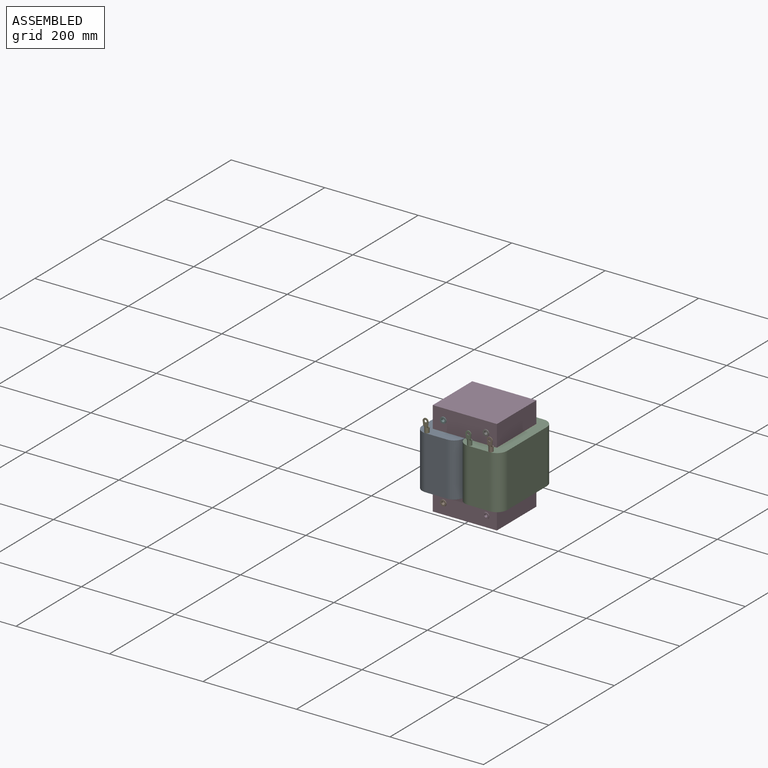
[diagram: assembled view]
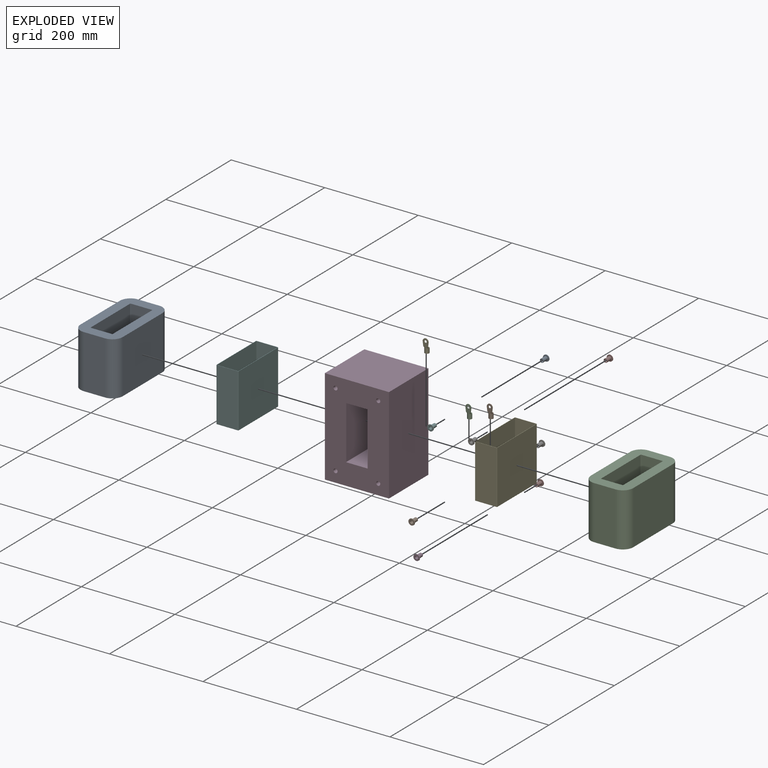
[diagram: exploded view]
GUIDED TOUR — MATED ASSEMBLY (Onshape document 58b9ac5c7fb4300f744a0f36, AutoMate assembly 58b9ac5c7fb4300f744a0f36_75ab90359ca5bb876df0fa08_917da6828774e9305538c0f6_default)

This assembly has 16 components, labeled P0..P15 below (a component is one placed occurrence of a part; the same part can appear more than once), held together by 15 mates. A mate is a constraint between two components; its type names the relative motion it leaves free:
  FASTENED — locks the two components together rigidly (no relative motion),
  PLANAR — leaves sliding in the plane through the listed point (normal = the listed direction) and rotation about that normal free.
Axis/direction vectors are unit vectors and 'through' points are millimeter coordinates, both in the assembly's world frame.

MATES
  1. FASTENED "Fastened 5": P7 <-> P11, direction (0.000, 1.000, 0.000) through (45.72, 120.65, -80.01) mm
  2. FASTENED "Fastened 6": P6 <-> P11, direction (0.000, 1.000, 0.000) through (-45.72, 120.65, -80.01) mm
  3. FASTENED "Fastened 12": P15 <-> P11, direction (0.000, -1.000, 0.000) through (45.72, 120.65, 80.01) mm
  4. PLANAR "Planar 1": P4 <-> P8, direction (0.000, 0.000, -1.000) through (-68.58, -17.83, 57.15) mm
  5. PLANAR "Planar 2": P10 <-> P2, direction (0.000, 0.000, -1.000) through (22.86, -17.83, 57.15) mm
  6. FASTENED "Fastened 8": P1 <-> P11, direction (0.000, 1.000, 0.000) through (-45.72, 0.00, -80.01) mm
  7. FASTENED "Fastened 10": P14 <-> P11, direction (0.000, 1.000, 0.000) through (45.72, 0.00, 80.01) mm
  8. PLANAR "Planar 3": P9 <-> P2, direction (0.000, 0.000, -1.000) through (68.58, -17.83, 57.15) mm
  9. FASTENED "Fastened 4": P2 <-> P12, direction (-1.000, 0.000, 0.000) through (69.34, 60.32, 0.00) mm
  10. FASTENED "Fastened 3": P12 <-> P11, direction (-1.000, 0.000, 0.000) through (68.58, 0.00, 0.00) mm
  11. FASTENED "Fastened 11": P0 <-> P11, direction (0.000, 1.000, 0.000) through (-45.72, 120.65, 80.01) mm
  12. FASTENED "Fastened 2": P8 <-> P5, direction (1.000, 0.000, 0.000) through (-69.34, 60.33, 0.00) mm
  13. FASTENED "Fastened 7": P3 <-> P11, direction (0.000, 1.000, 0.000) through (45.72, 0.00, -80.01) mm
  14. FASTENED "Fastened 9": P13 <-> P11, direction (0.000, -1.000, 0.000) through (-45.72, 0.00, 80.01) mm
  15. FASTENED "Fastened 1": P5 <-> P11, direction (1.000, 0.000, 0.000) through (-68.58, 0.00, 0.00) mm

ASSEMBLY ORDER
  1. P12 — the base component [order verified]
  2. P2 [order verified]
  3. P11 [order verified]
  4. P5 [order verified]
  5. P8 [order verified]
  6. P7 [order verified]
  7. P6 [order verified]
  8. P3 [order verified]
  9. P1 [order verified]
  10. P15 [order verified]
  11. P14 [order verified]
  12. P13 [order verified]
  13. P0 [order verified]
  14. P4 [order verified]
  15. P9 [order verified]
  16. P10 [order verified]
Order-tag legend:
  [order verified] — this step's position reverses a verified removal order: the component was checked to insert without passing through the ones already placed.

Of the 16 components, 8 carry the full construction recipe — the FeatureScript program that regenerates the part's solid from scratch; the rest are supplied as boundary geometry only.
Because this assembly has more than 12 components, the tour below covers the 12 most significant ones individually (every recipe-attached component first, then the largest by part volume), in assembly order; the remaining 4 are summarized together in a grouped section at the end.
Each toured component is shown spotlighted twice — in the assembled view, then in the exploded view, where a leader line traces a displaced component back to its assembled socket (saturated green if recipe-attached, orange if geometry-only; every other component desaturated gray) — followed by its recipe or geometry summary and the mates that hold it.
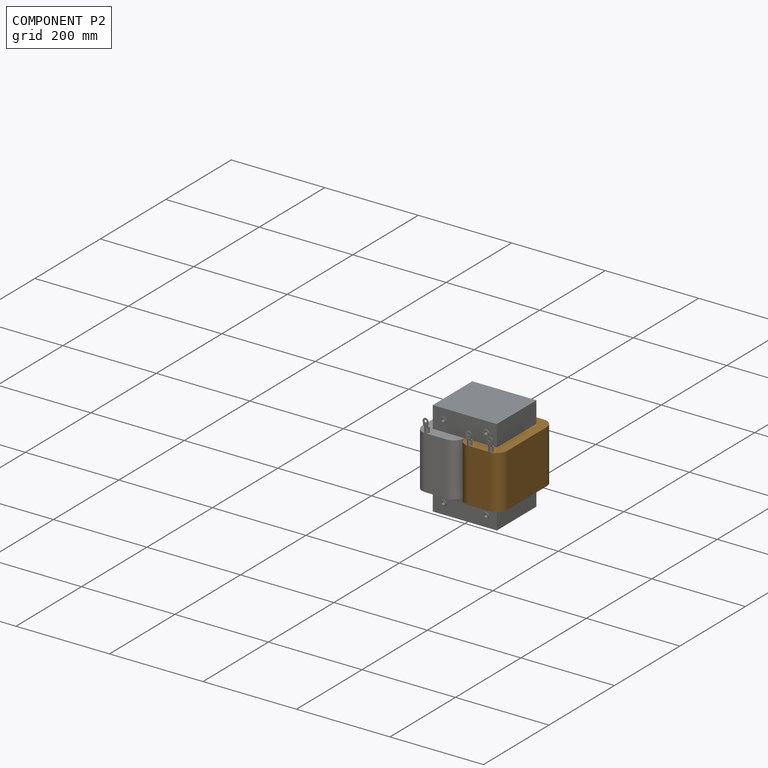
[diagram: component P2 — assembled]
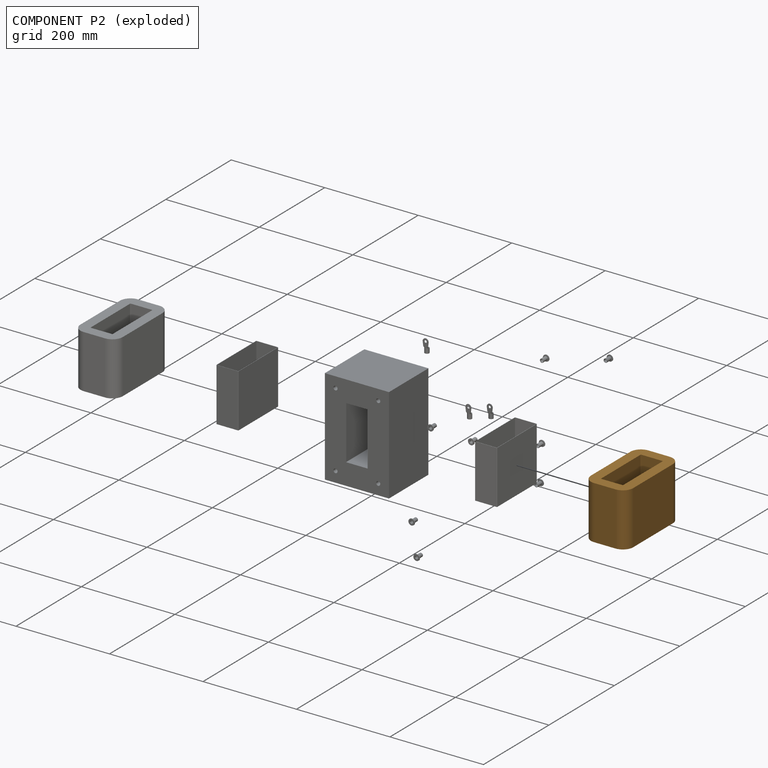
[diagram: component P2 — exploded]
COMPONENT P2 — geometry summary (no construction recipe available for this part):
  bounding box: 165.5 x 114.3 x 90.5 mm
  B-rep topology: 1 solid, 18 faces, 96 edges
  volume: 1003057 mm^3 (59% of its bounding box)
  symmetry: 2-fold rotationally symmetric about the x axis; 2-fold rotationally symmetric about the y axis; 2-fold rotationally symmetric about the z axis; mirror-symmetric across its x mid-plane, y mid-plane, z mid-plane
Held by: PLANAR mate "Planar 2" to P10; PLANAR mate "Planar 3" to P9; FASTENED mate "Fastened 4" to P12.
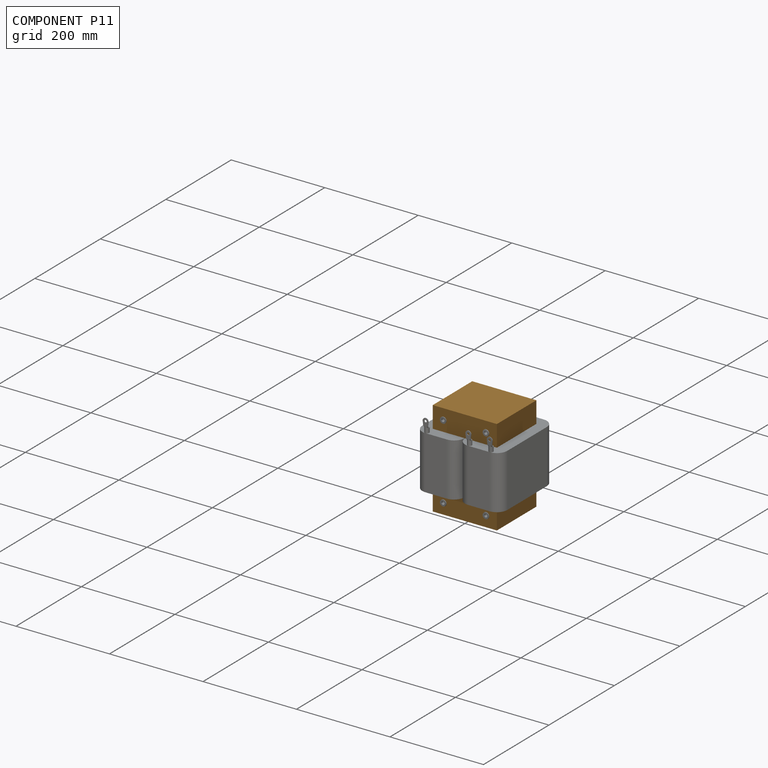
[diagram: component P11 — assembled]
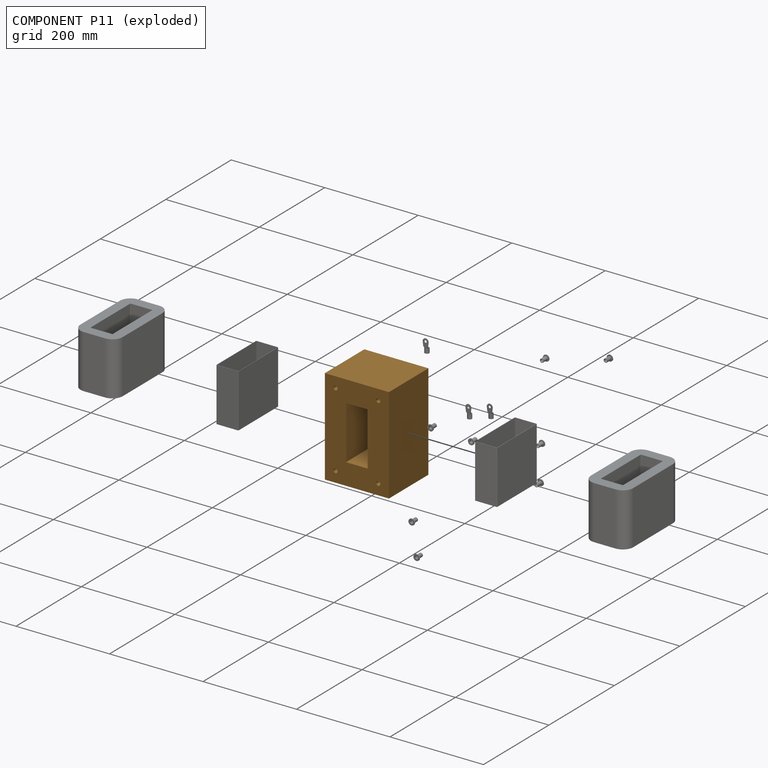
[diagram: component P11 — exploded]
COMPONENT P11 — geometry summary (no construction recipe available for this part):
  bounding box: 205.7 x 137.2 x 120.7 mm
  B-rep topology: 1 solid, 18 faces, 96 edges
  volume: 2745336 mm^3 (81% of its bounding box)
  symmetry: 2-fold rotationally symmetric about the x axis; 2-fold rotationally symmetric about the y axis; 2-fold rotationally symmetric about the z axis; mirror-symmetric across its x mid-plane, y mid-plane, z mid-plane
Held by: FASTENED mate "Fastened 5" to P7; FASTENED mate "Fastened 6" to P6; FASTENED mate "Fastened 12" to P15; FASTENED mate "Fastened 8" to P1; FASTENED mate "Fastened 10" to P14; FASTENED mate "Fastened 3" to P12; FASTENED mate "Fastened 11" to P0; FASTENED mate "Fastened 7" to P3; FASTENED mate "Fastened 9" to P13; FASTENED mate "Fastened 1" to P5.
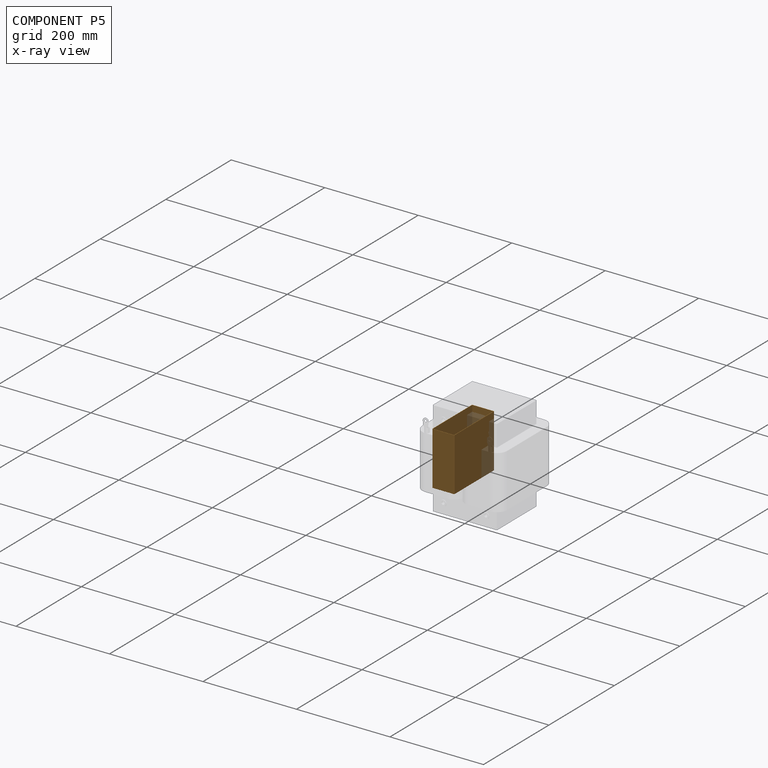
[diagram: component P5 — x-ray view]
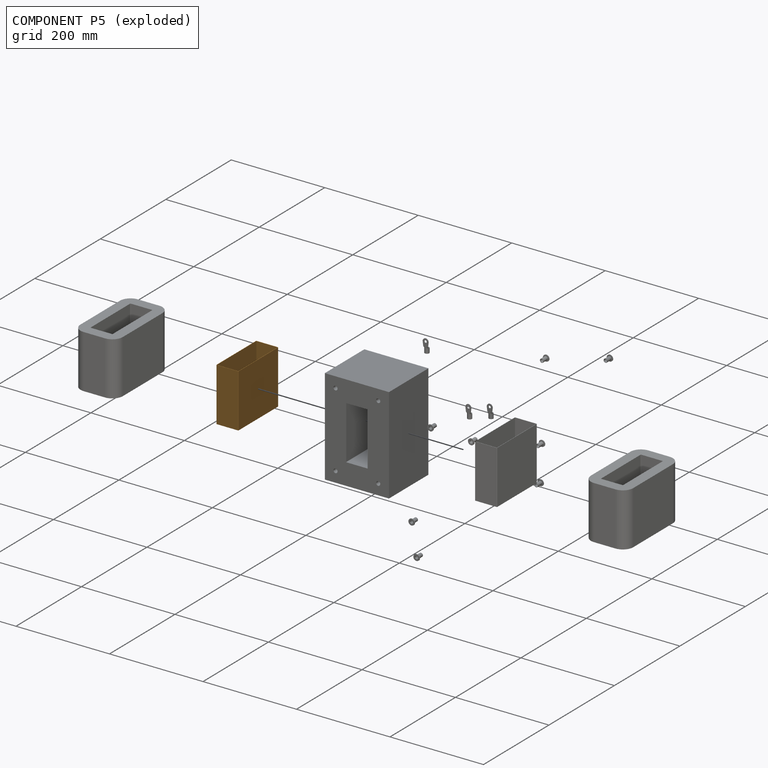
[diagram: component P5 — exploded]
COMPONENT P5 — geometry summary (no construction recipe available for this part):
  bounding box: 122.2 x 114.3 x 47.2 mm
  B-rep topology: 1 solid, 14 faces, 72 edges
  volume: 29189 mm^3 (4% of its bounding box)
  symmetry: 2-fold rotationally symmetric about the x axis; 2-fold rotationally symmetric about the y axis; 2-fold rotationally symmetric about the z axis; mirror-symmetric across its x mid-plane, y mid-plane, z mid-plane
Held by: FASTENED mate "Fastened 2" to P8; FASTENED mate "Fastened 1" to P11.
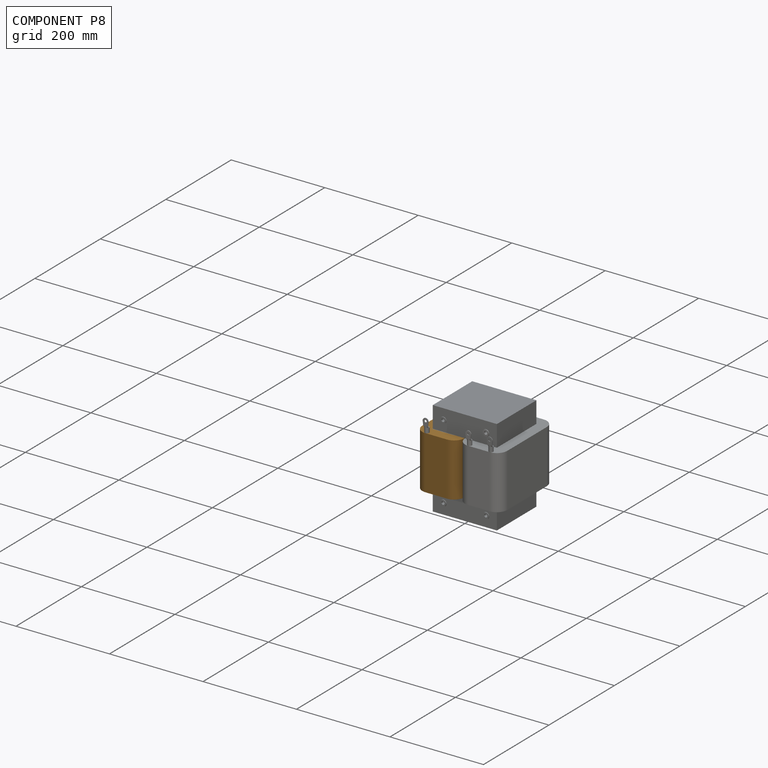
[diagram: component P8 — assembled]
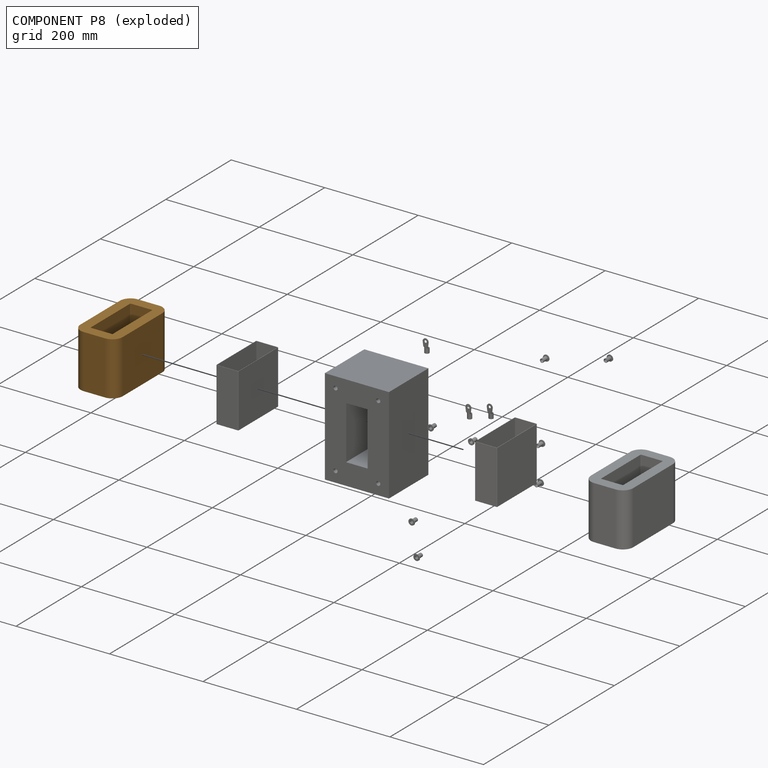
[diagram: component P8 — exploded]
COMPONENT P8 — geometry summary (no construction recipe available for this part):
  bounding box: 165.5 x 114.3 x 90.5 mm
  B-rep topology: 1 solid, 18 faces, 96 edges
  volume: 1003057 mm^3 (59% of its bounding box)
  symmetry: 2-fold rotationally symmetric about the x axis; 2-fold rotationally symmetric about the y axis; 2-fold rotationally symmetric about the z axis; mirror-symmetric across its x mid-plane, y mid-plane, z mid-plane
Held by: PLANAR mate "Planar 1" to P4; FASTENED mate "Fastened 2" to P5.
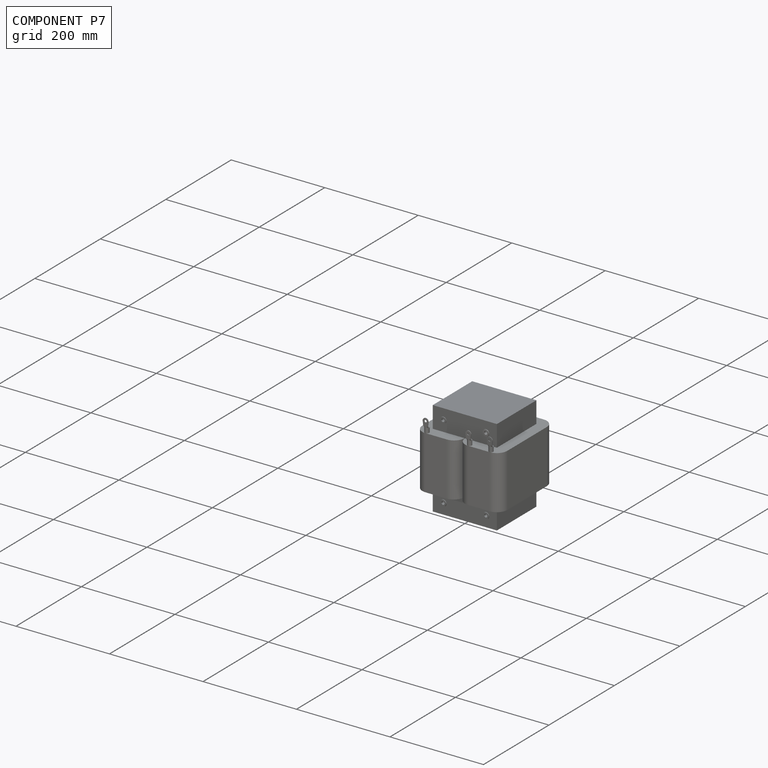
[diagram: component P7 — assembled]
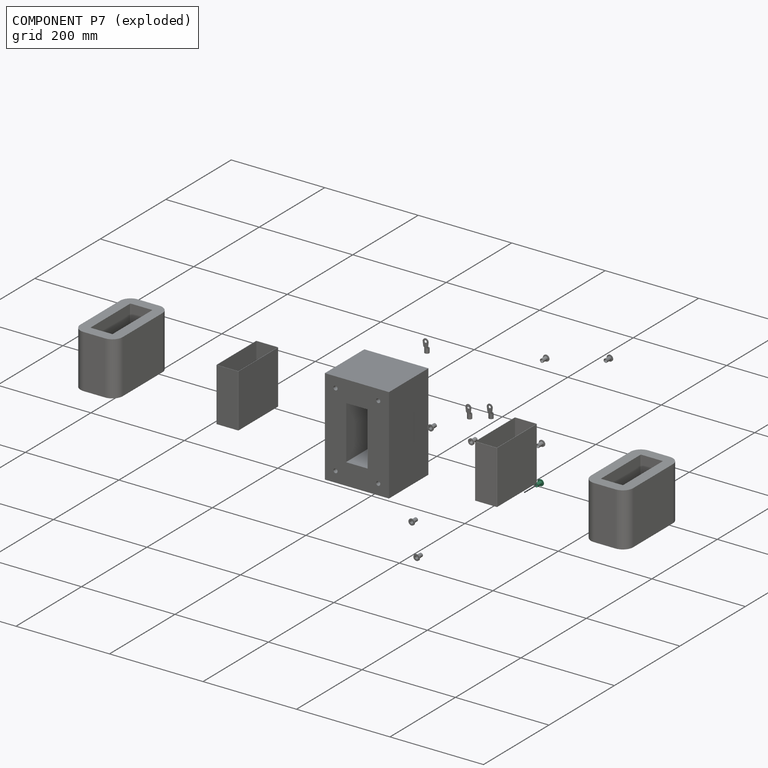
[diagram: component P7 — exploded]
COMPONENT P7 — same part as P0 (CADFS 00583487); its construction recipe is shown at P0.
Held by: FASTENED mate "Fastened 5" to P11.
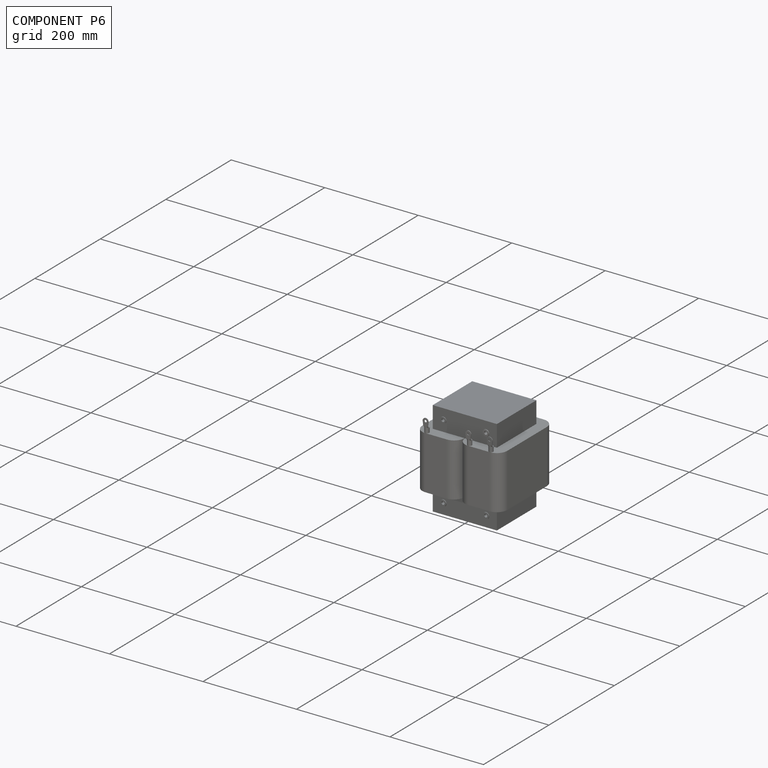
[diagram: component P6 — assembled]
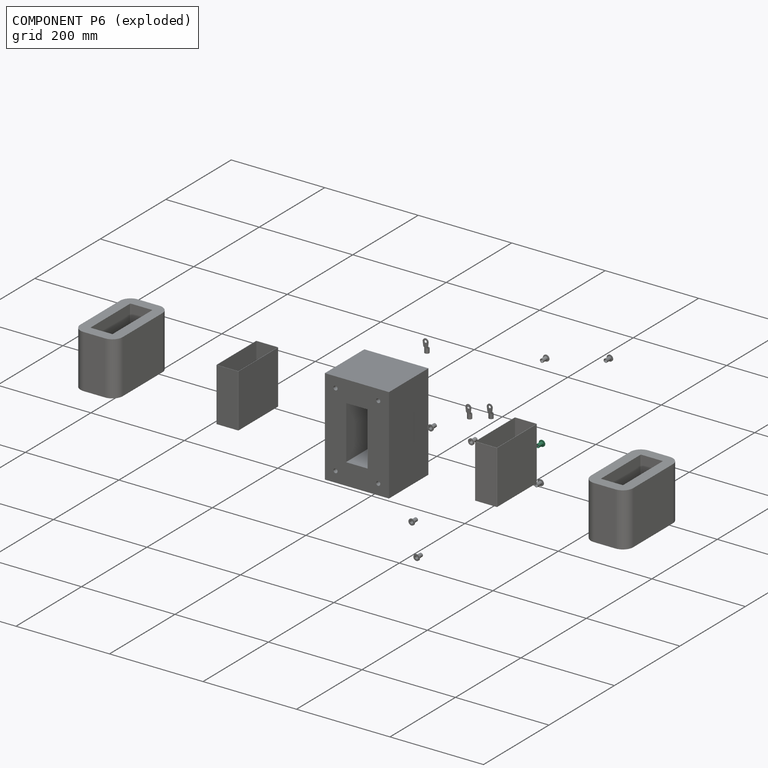
[diagram: component P6 — exploded]
COMPONENT P6 — same part as P0 (CADFS 00583487); its construction recipe is shown at P0.
Held by: FASTENED mate "Fastened 6" to P11.
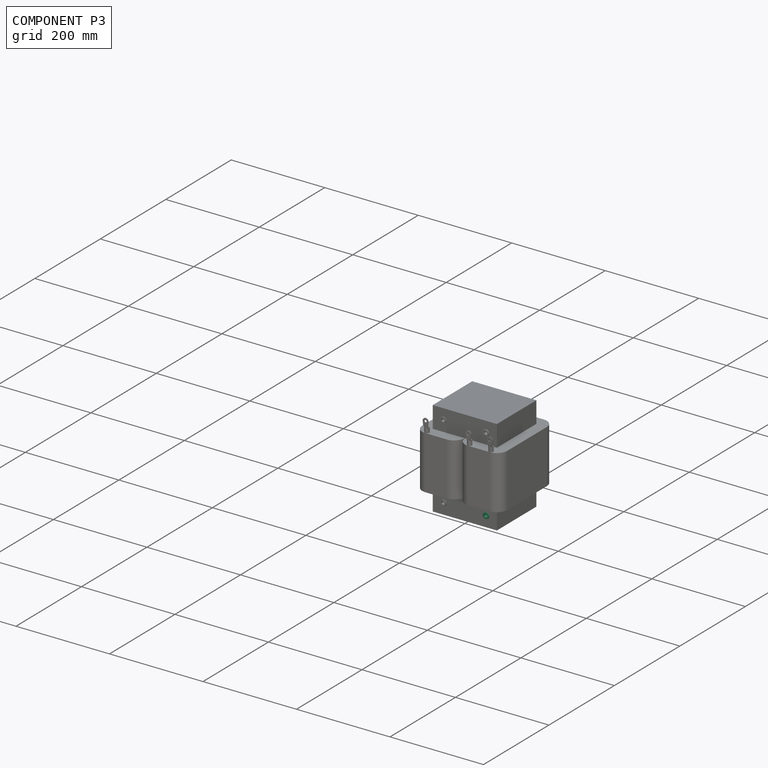
[diagram: component P3 — assembled]
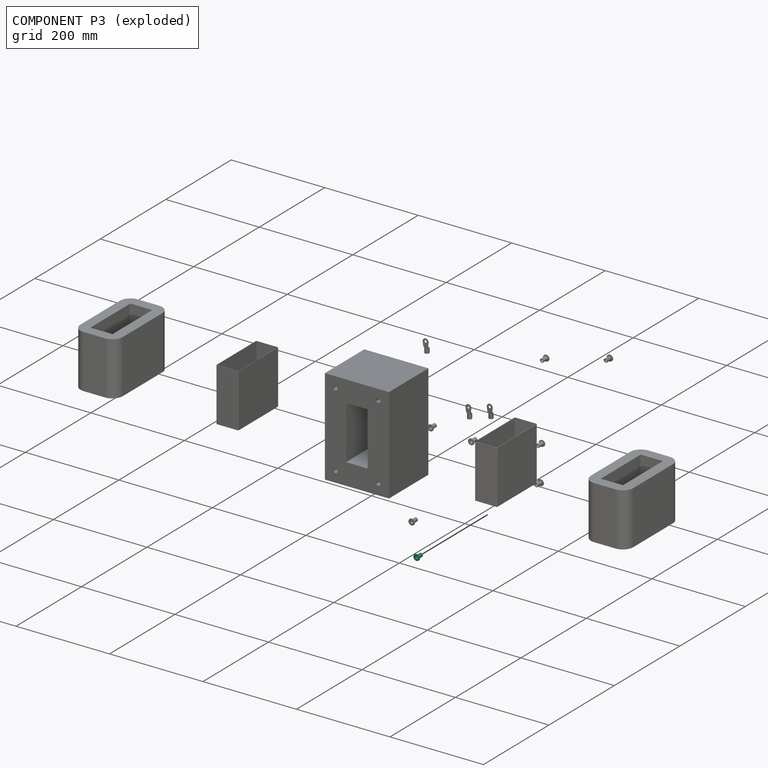
[diagram: component P3 — exploded]
COMPONENT P3 — same part as P0 (CADFS 00583487); its construction recipe is shown at P0.
Held by: FASTENED mate "Fastened 7" to P11.
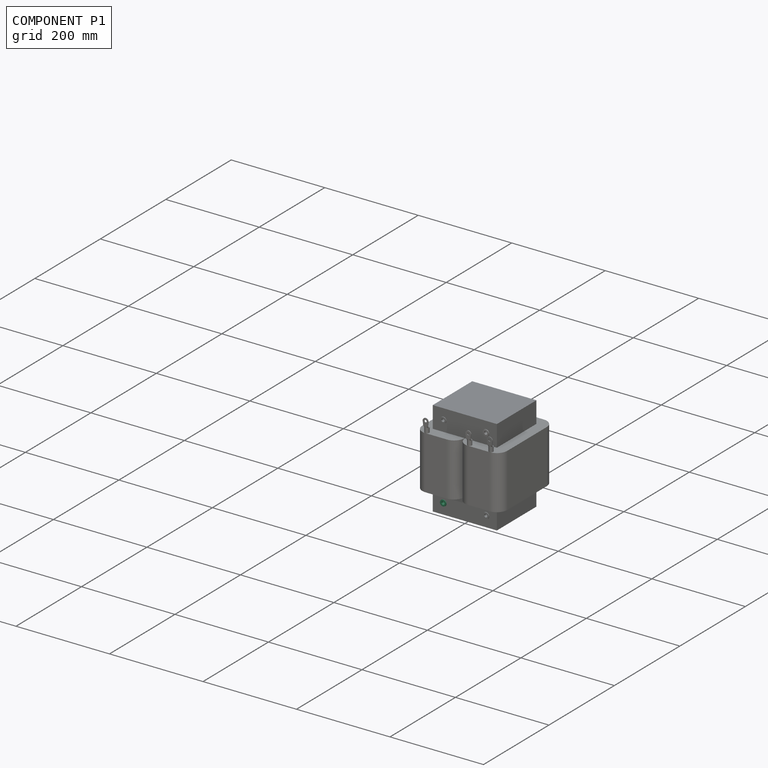
[diagram: component P1 — assembled]
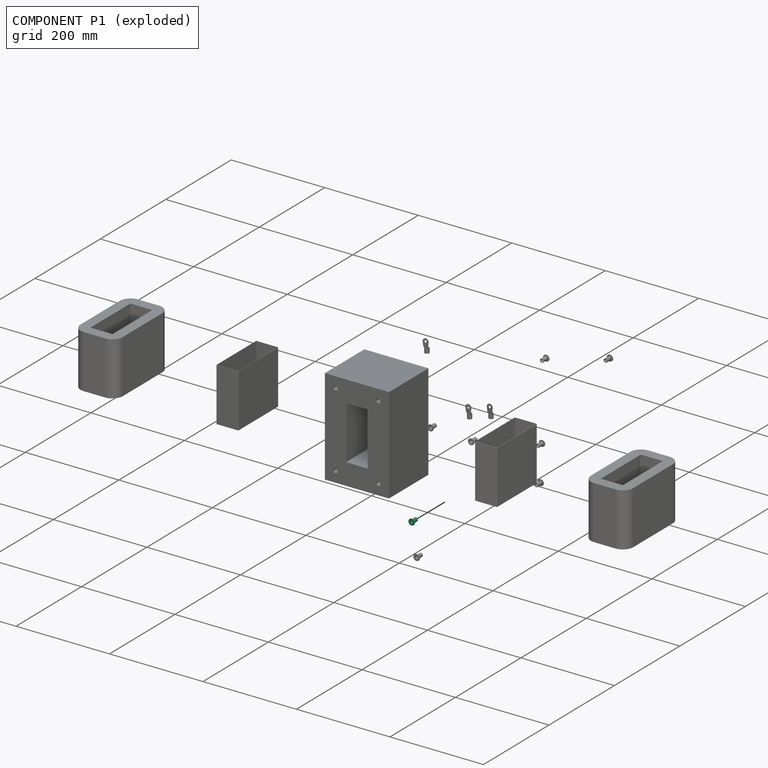
[diagram: component P1 — exploded]
COMPONENT P1 — same part as P0 (CADFS 00583487); its construction recipe is shown at P0.
Held by: FASTENED mate "Fastened 8" to P11.
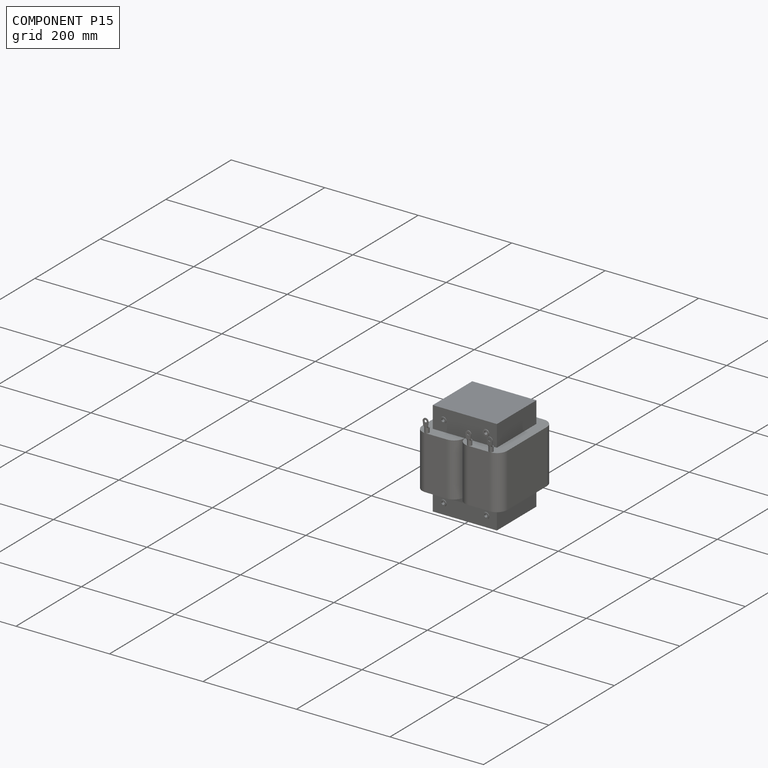
[diagram: component P15 — assembled]
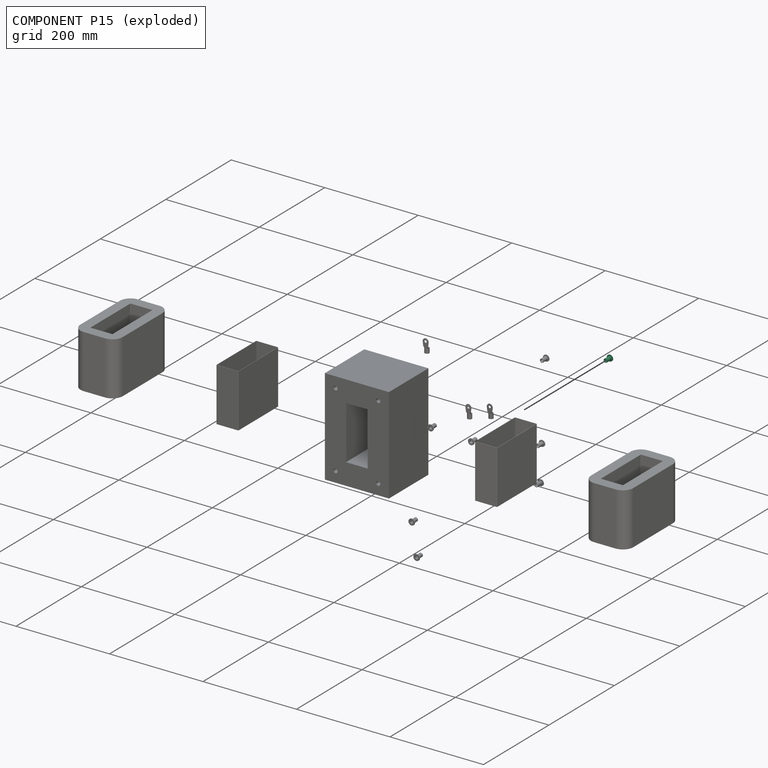
[diagram: component P15 — exploded]
COMPONENT P15 — same part as P0 (CADFS 00583487); its construction recipe is shown at P0.
Held by: FASTENED mate "Fastened 12" to P11.
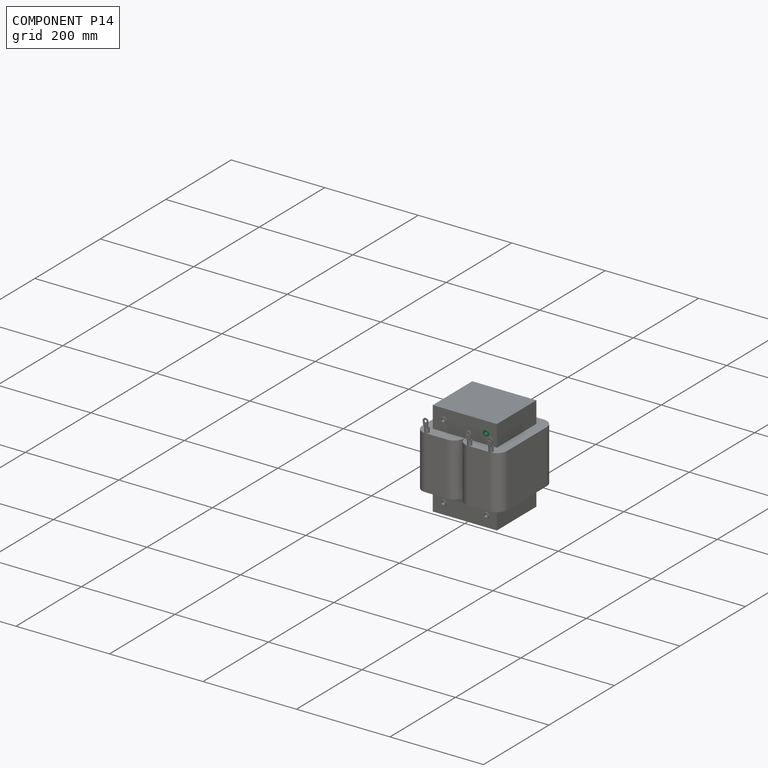
[diagram: component P14 — assembled]
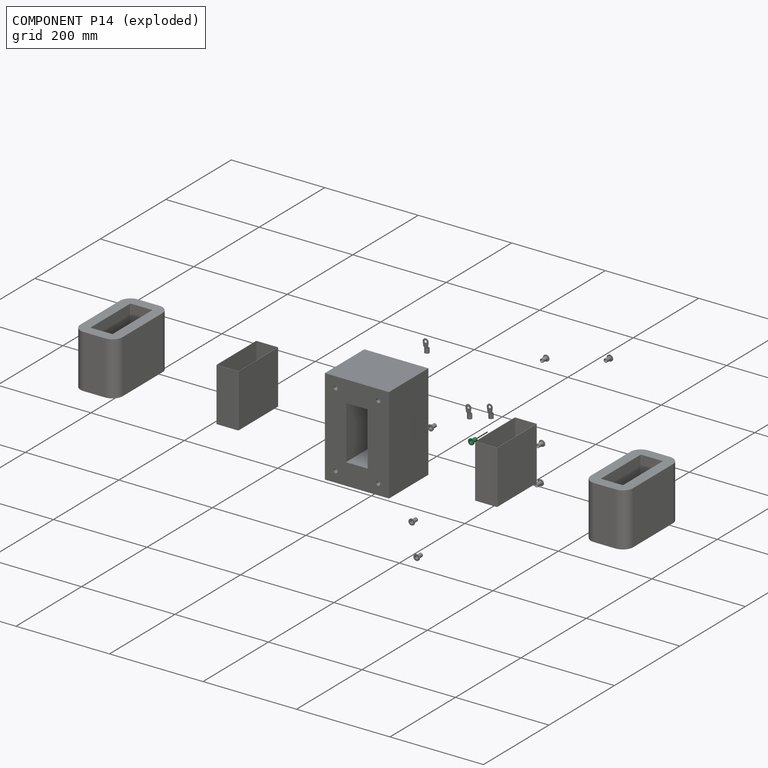
[diagram: component P14 — exploded]
COMPONENT P14 — same part as P0 (CADFS 00583487); its construction recipe is shown at P0.
Held by: FASTENED mate "Fastened 10" to P11.
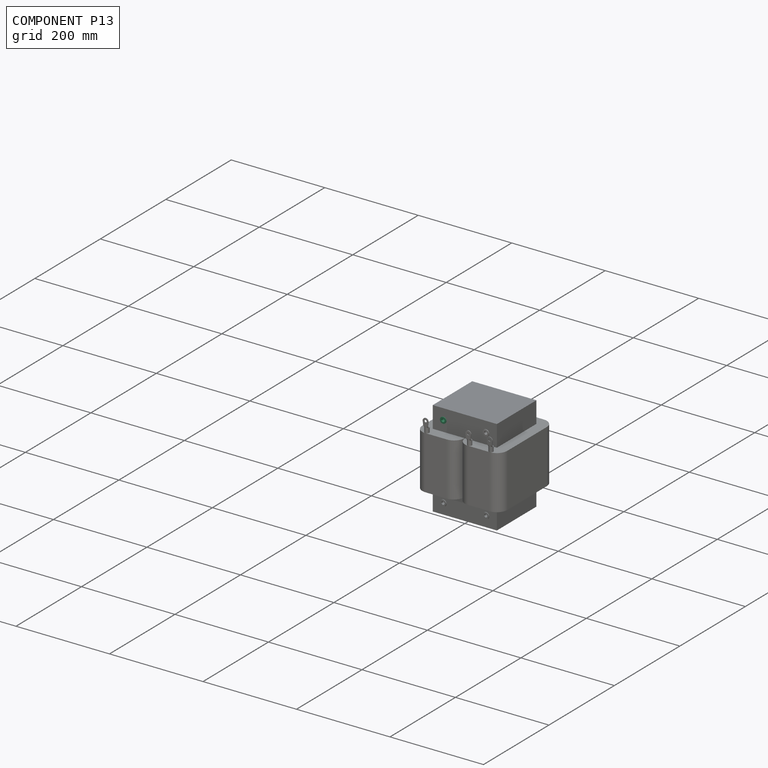
[diagram: component P13 — assembled]
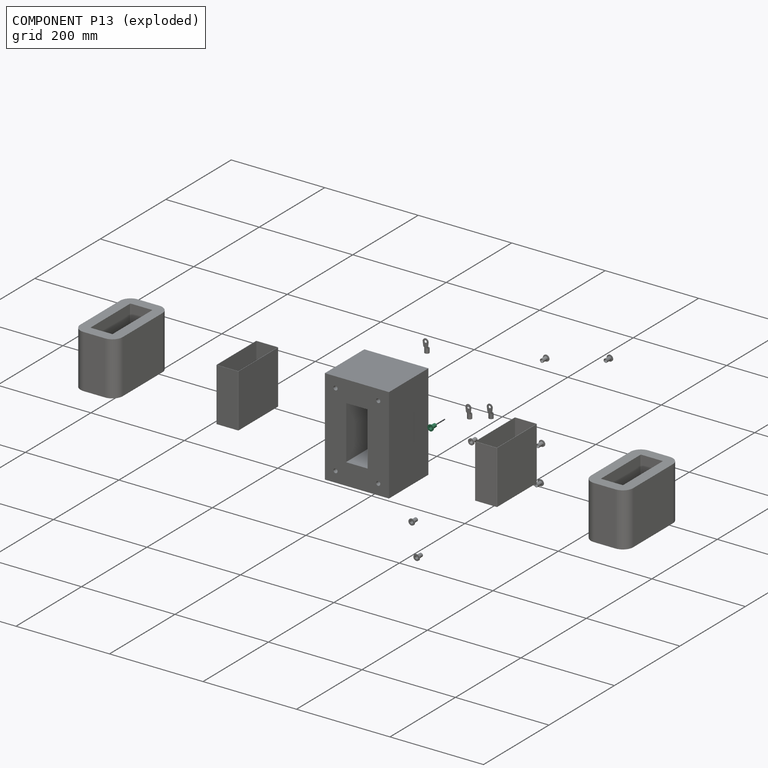
[diagram: component P13 — exploded]
COMPONENT P13 — same part as P0 (CADFS 00583487); its construction recipe is shown at P0.
Held by: FASTENED mate "Fastened 9" to P11.
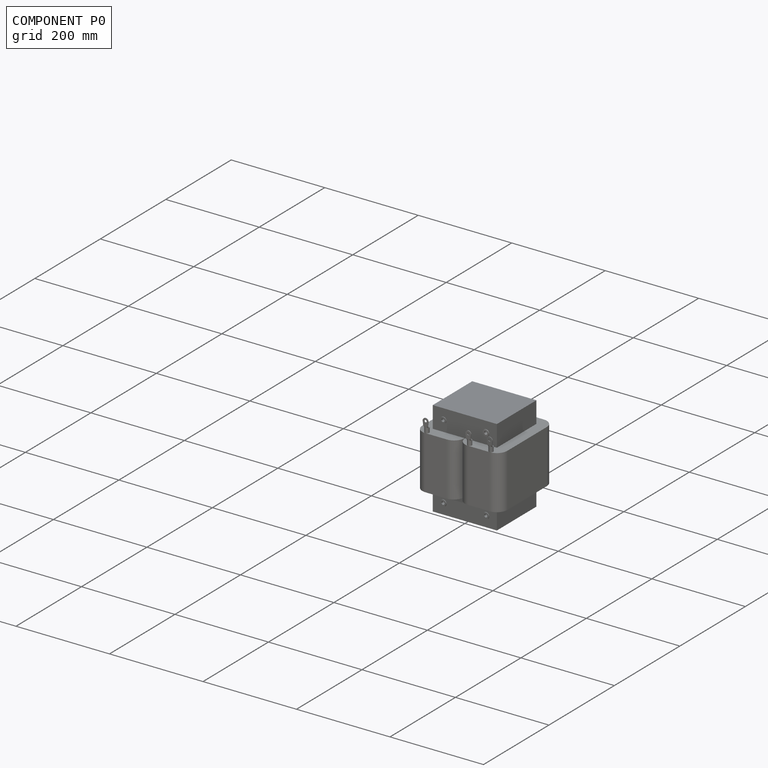
[diagram: component P0 — assembled]
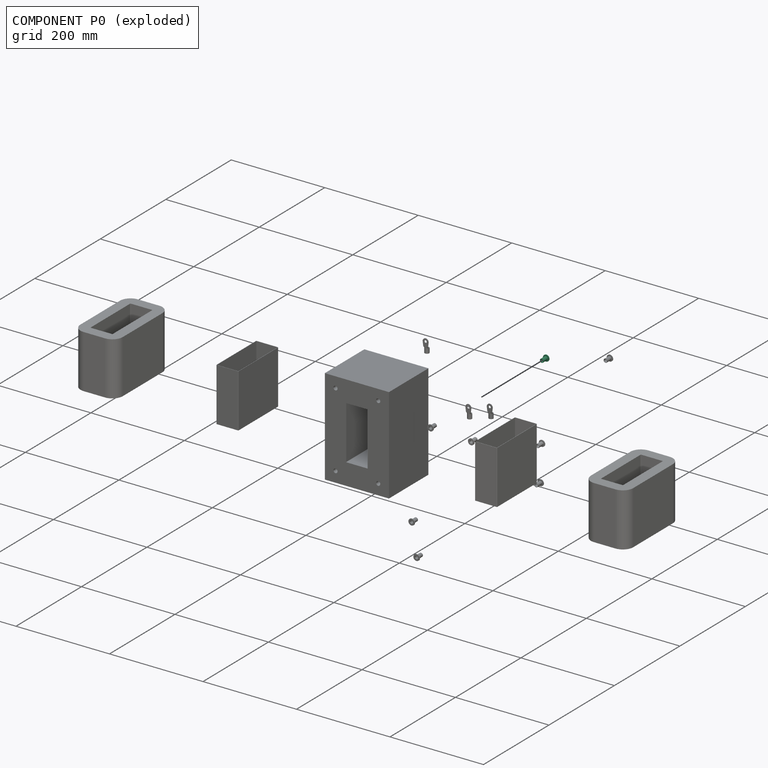
[diagram: component P0 — exploded]
COMPONENT P0 — recipe-attached (CADFS 00583487, mesh-verified: the recipe's output STEP matches this component's geometry to below the mesh-comparison resolution (tessellation chordal tolerance ~0.0349 mm)).
Held by: FASTENED mate "Fastened 11" to P11.
Construction recipe (FeatureScript — the CAD program that rebuilds this solid; sketch coordinates are in the units given by the * unit suffixes, e.g. mm):

FeatureScript 2260;
import(path : "onshape/std/geometry.fs", version : "2260.0");
import(path : "onshape/std/common.fs", version : "2260.0");
const mm = millimeter;
const VERTEX = EntityType.VERTEX;
const EDGE = EntityType.EDGE;
const FACE = EntityType.FACE;
const BODY = EntityType.BODY;
function v(x, y){return vector(x, y);}
function OD(order){return orderDisambiguation(order);}
function OSD(set){return originalSetDisambiguation(set);}
function TD(topology){return topologyDisambiguation(topology);}
function TDD(query){return trueDependencyDisambiguation(query);}
function sQuery(a, b, c) {return sketchEntityQuery(a, b, c);}

annotation { "Feature Type Name" : "Feature", "Feature Type Description" : "" }
export const myFeature = defineFeature(function(context is Context, id is Id, definition is map)
    precondition{}
    {
        {
            var Q0;
            Q0=qCreatedBy(makeId("Top.planeOp"),FACE);
            var sketch = newSketch(context, id + "F0", { "sketchPlane" : qUnion([Q0])});
            skCircle(sketch, "E0", {"center": v(0, 0) * mm, "radius": 6.52 * mm});
            skSolve(sketch);
        }
        {
            var Q0;
            Q0=qSketchRegion(id+"F0",true);
            extrude(context, id + "F1", {"entities" : qUnion([Q0]), "depth" : 14.27 * mm});
        }
        {
            var Q0;
            Q0=makeQuery(id+"F1.opExtrude","CAP_FACE",FACE,{"disambiguationData":[OSD([sQuery(id+"F0.wireOp",EDGE,"E0")])],"isStart":false});
            var sketch = newSketch(context, id + "F2", { "sketchPlane" : qUnion([Q0])});
            skCircle(sketch, "E1", {"center": v(0, 0) * mm, "radius": 6.52 * mm});
            skCircle(sketch, "E2", {"center": v(0, 0) * mm, "radius": 3.96 * mm});
            skSolve(sketch);
        }
        {
            var Q0;
            Q0=qSketchRegion(id+"F2",true);
            extrude(context, id + "F3", {"entities" : qUnion([Q0]), "operationType" : NewBodyOperationType.REMOVE, "oppositeDirection" : true, "depth" : 12.7 * mm});
        }
        {
            var Q0;
            Q0=makeQuery(id+"F1.opExtrude","CAP_FACE",FACE,{"disambiguationData":[OSD([sQuery(id+"F0.wireOp",EDGE,"E0")])],"isStart":false});
            var sketch = newSketch(context, id + "F4", { "sketchPlane" : qUnion([Q0])});
            skCircle(sketch, "E3", {"center": v(0, 0) * mm, "radius": 3.3 * mm});
            skSolve(sketch);
        }
        {
            var Q0;
            Q0=qSketchRegion(id+"F4",true);
            extrude(context, id + "F5", {"entities" : qUnion([Q0]), "operationType" : NewBodyOperationType.REMOVE, "oppositeDirection" : true, "depth" : 14.27 * mm});
        }
    });
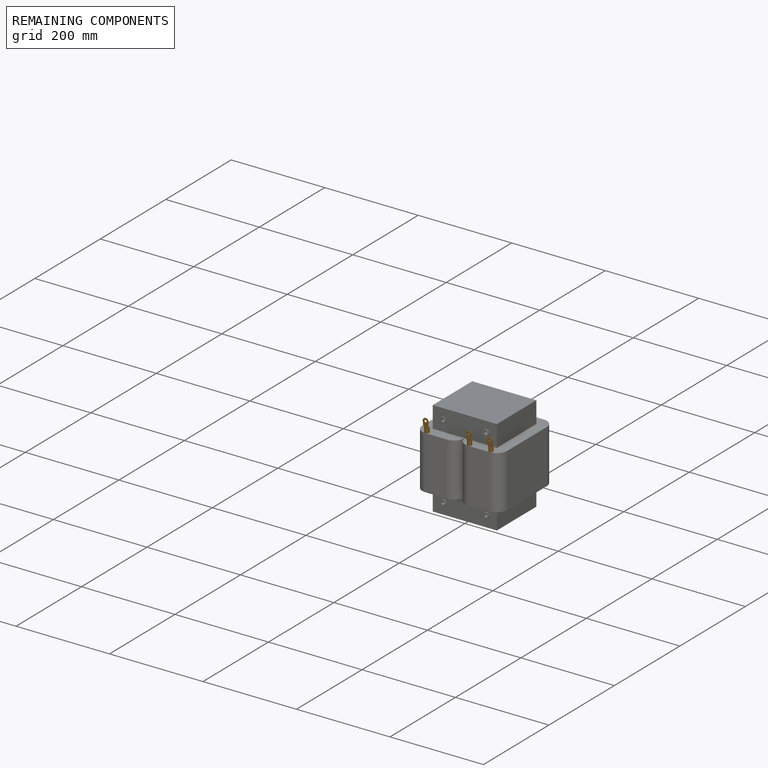
[diagram: remaining components — assembled]
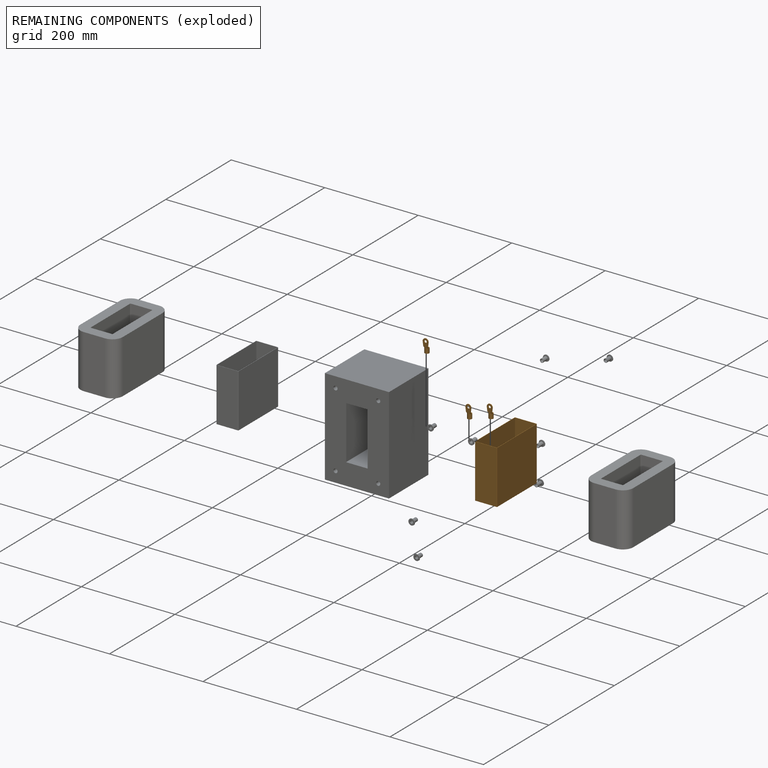
[diagram: remaining components — exploded]
REMAINING COMPONENTS (grouped) — the 4 components below fall outside the per-component tour by the significance rule stated above; both spotlight views highlight the whole group.
  P12: bounding box 122.2 x 114.3 x 47.2 mm, volume 29189 mm^3. Held by: FASTENED mate "Fastened 4" to P2; FASTENED mate "Fastened 3" to P11.
  P4: bounding box 29.1 x 11.9 x 9.3 mm, volume 600 mm^3. Held by: PLANAR mate "Planar 1" to P8.
  P9: bounding box 29.1 x 11.9 x 9.3 mm, volume 600 mm^3. Held by: PLANAR mate "Planar 3" to P2.
  P10: bounding box 29.1 x 11.9 x 9.3 mm, volume 600 mm^3. Held by: PLANAR mate "Planar 2" to P2.
PROVENANCE & LICENSES
Assembly (occurrences, transforms, mates, per-part STEP geometry): AutoMate dataset, Zenodo record 7776208, CC0.
Construction recipes: CADFS (HuggingFace VladPyatov/CADFS, CC-BY-4.0, layered over the ABC dataset), FeatureScript reconstruction programs keyed by ABC model id.
Join: ABC meta listings map ABC model id -> Onshape documentId; within a shared document, parts are matched by geometric signature (bounding-box dims + volume at 0.1% relative tolerance, exact B-rep face/solid counts).
Verification: 8 of this assembly's 16 components carry a recipe attachment, and every attachment is mesh-verified: the CADFS STEP and the AutoMate member STEP were compared as meshes in their shared local frame (symmetric sampled-point-to-mesh distance); worst across the 8 attachments: below the mesh-comparison resolution (tessellation chordal tolerance ~0.0349 mm) on a 23 mm part.
Renders: orthographic iso camera (az 35 / el 25); the floor grid conveys scale (grid pitch printed in each image; no ruler). In the exploded view each component is displaced by its stored offset vector: the offsets alone carry the explosion direction (mate normal/axis signs are not orientation cues and do not encode it), and separation distances are assigned per mate-chain, not proportionally to assembly-order depth.
